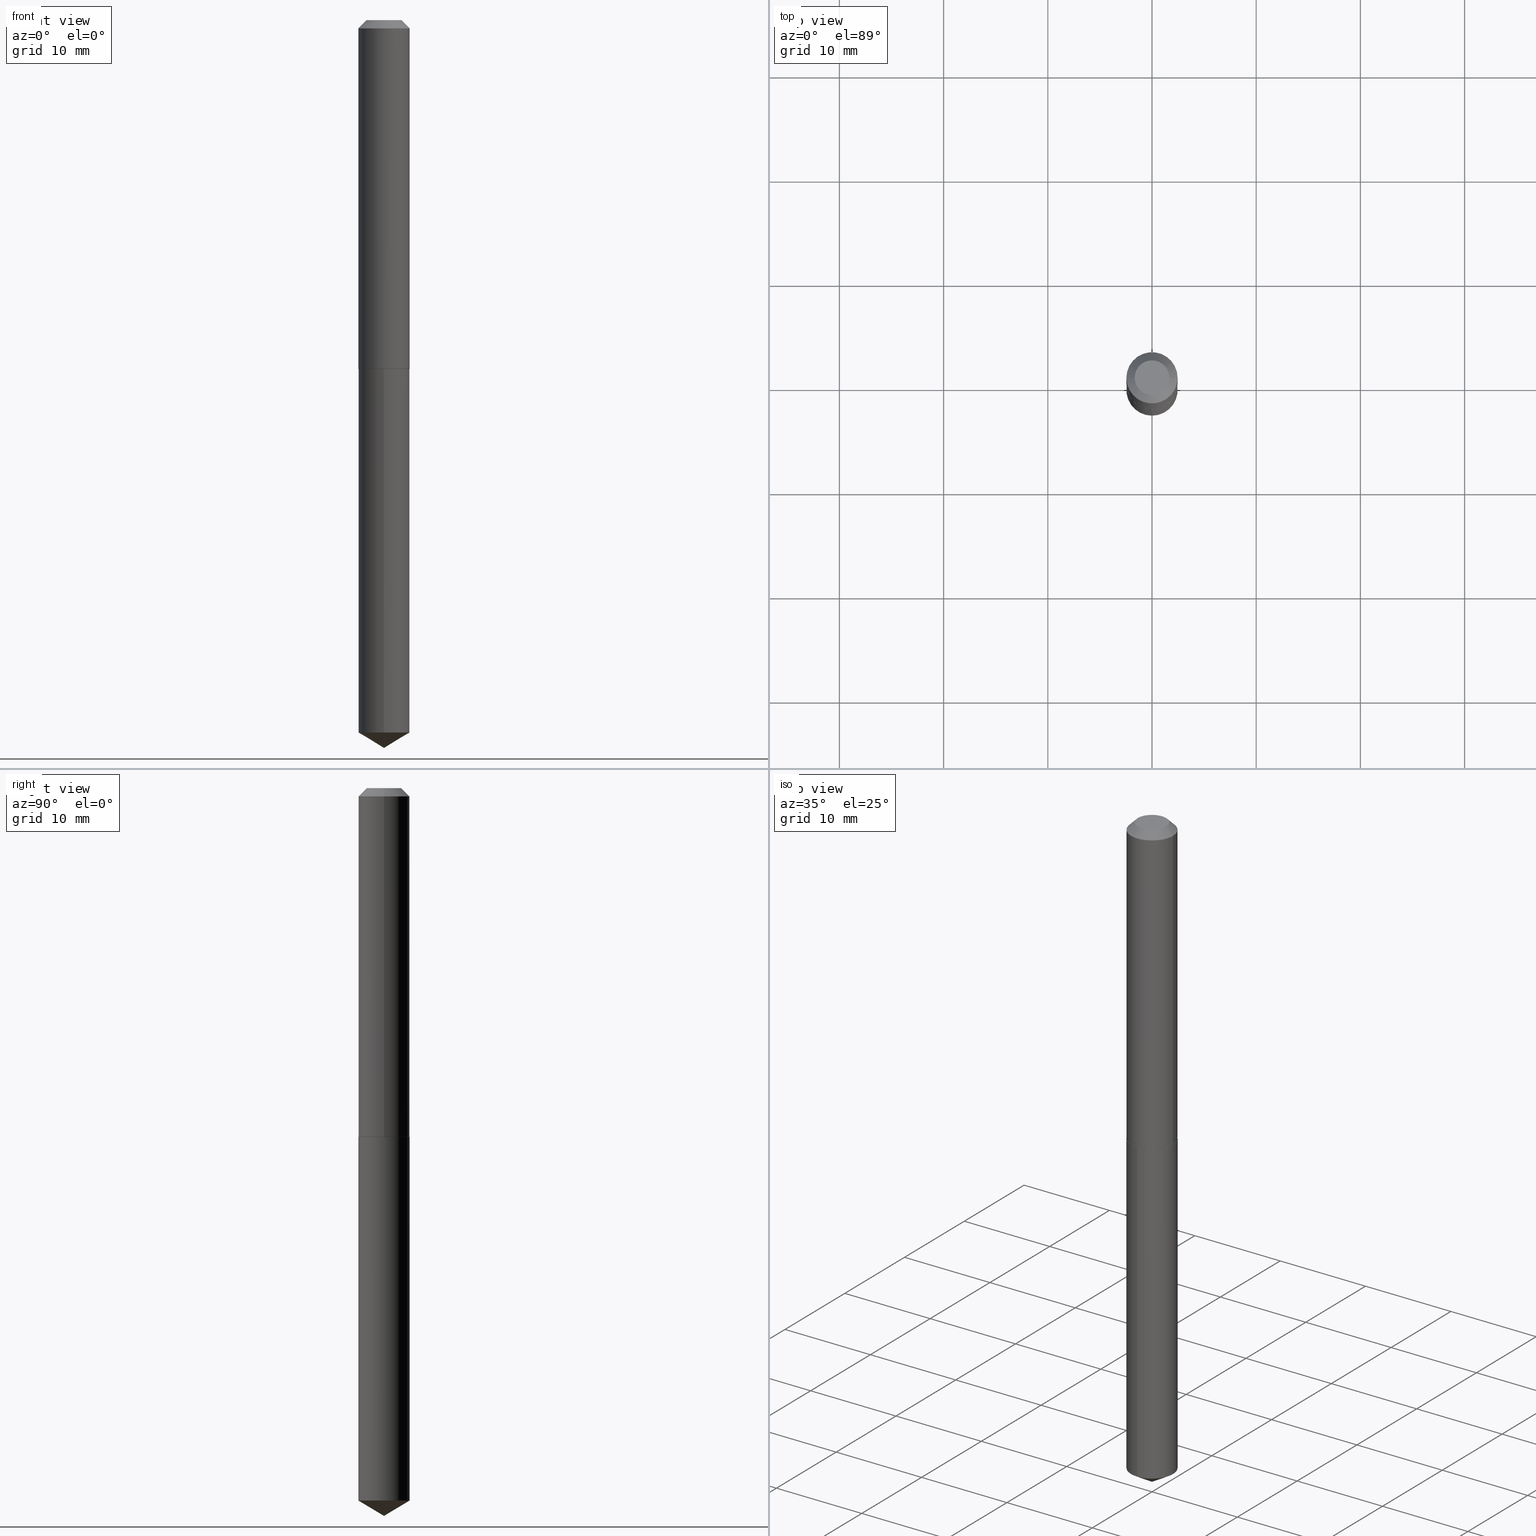
[diagram: canonical four-view strip — front | top / right | iso, engineering-drawing reading convention]
A machine part, canonical four-view strip (front | top / right | iso — engineering-drawing reading convention). The complete STEP part file that produces these views, byte-faithful:
ISO-10303-21;
HEADER;
FILE_DESCRIPTION (( 'STEP AP203' ),
    '1' );
FILE_NAME ('57158.STEP',
    '2024-04-22T23:07:11',
    ( '' ),
    ( '' ),
    'SwSTEP 2.0',
    'SolidWorks 2023',
    '' );
FILE_SCHEMA (( 'CONFIG_CONTROL_DESIGN' ));
ENDSEC;

DATA;
#1 = CIRCLE ( 'NONE', #223, 0.09675000000000000266 ) ;
#2 = FACE_OUTER_BOUND ( 'NONE', #183, .T. ) ;
#3 = DIRECTION ( 'NONE',  ( 2.445534353005250653E-29, -3.491387472066048584E-15, -1.000000000000000000 ) ) ;
#4 = ORIENTED_EDGE ( 'NONE', *, *, #359, .F. ) ;
#5 = DATE_AND_TIME ( #108, #284 ) ;
#6 = EDGE_CURVE ( 'NONE', #300, #65, #360, .T. ) ;
#7 = VECTOR ( 'NONE', #347, 39.37007874015748143 ) ;
#8 = MANIFOLD_SOLID_BREP ( 'Body-Move/Copy2[2]', #33 ) ;
#9 = DIRECTION ( 'NONE',  ( 1.000000000000000000, -6.982962677686261977E-15, 0.000000000000000000 ) ) ;
#10 = FACE_OUTER_BOUND ( 'NONE', #369, .T. ) ;
#11 = PERSON_AND_ORGANIZATION ( #367, #182 ) ;
#12 = ORIENTED_EDGE ( 'NONE', *, *, #364, .F. ) ;
#13 = CIRCLE ( 'NONE', #106, 0.09675000000000016920 ) ;
#14 = PLANE ( 'NONE',  #188 ) ;
#15 = CALENDAR_DATE ( 2024, 22, 4 ) ;
#16 = CARTESIAN_POINT ( 'NONE',  ( -0.06550000000000000266, 5.119384513078738681E-16, 1.530808498900305475E-19 ) ) ;
#17 = CARTESIAN_POINT ( 'NONE',  ( -0.09675000000000016920, -3.914322307747367897E-15, -1.318000000000000060 ) ) ;
#18 = EDGE_LOOP ( 'NONE', ( #270, #96, #51, #333 ) ) ;
#19 = AXIS2_PLACEMENT_3D ( 'NONE', #237, #22, #202 ) ;
#20 = DATE_TIME_ROLE ( 'classification_date' ) ;
#21 = DIRECTION ( 'NONE',  ( 6.090539988449784746E-15, 0.8571673007021146651, 0.5150380749100501587 ) ) ;
#22 = DIRECTION ( 'NONE',  ( -2.445534353005250934E-29, 3.491387472066048584E-15, 1.000000000000000000 ) ) ;
#23 = DIRECTION ( 'NONE',  ( -5.985567269335947590E-15, -0.8571673007021111124, 0.5150380749100561539 ) ) ;
#24 = EDGE_CURVE ( 'NONE', #294, #244, #59, .T. ) ;
#25 = CONICAL_SURFACE ( 'NONE', #295, 0.09675000000000000266, 0.7853981633974452814 ) ;
#26 = ORIENTED_EDGE ( 'NONE', *, *, #275, .F. ) ;
#27 = PRODUCT_RELATED_PRODUCT_CATEGORY ( 'detail', '', ( #85 ) ) ;
#28 = DIRECTION ( 'NONE',  ( -2.445468806185136597E-29, 3.491481338843145583E-15, 1.000000000000000000 ) ) ;
#29 = DIRECTION ( 'NONE',  ( 6.982962677686265922E-15, 1.000000000000000000, -3.491387472066048584E-15 ) ) ;
#30 = ORIENTED_EDGE ( 'NONE', *, *, #70, .T. ) ;
#31 = DIRECTION ( 'NONE',  ( -1.000000000000000000, 6.982962677686265922E-15, -4.876176775795935793E-29 ) ) ;
#32 = VERTEX_POINT ( 'NONE', #39 ) ;
#33 = CLOSED_SHELL ( 'NONE', ( #54, #69, #379, #247, #38, #304, #134, #374 ) ) ;
#34 = EDGE_LOOP ( 'NONE', ( #344, #335, #30, #274 ) ) ;
#35 = EDGE_CURVE ( 'NONE', #56, #305, #157, .T. ) ;
#36 = VECTOR ( 'NONE', #255, 39.37007874015748143 ) ;
#37 = CARTESIAN_POINT ( 'NONE',  ( 3.224350620955102598E-29, -4.603518145264687138E-15, -1.318499999999999783 ) ) ;
#38 = ADVANCED_FACE ( 'NONE', ( #74 ), #165, .T. ) ;
#39 = CARTESIAN_POINT ( 'NONE',  ( -0.09675000000000000266, -1.667990501369159630E-15, -0.03125000000000019429 ) ) ;
#40 = CARTESIAN_POINT ( 'NONE',  ( -0.09675000000000016920, -3.914322307747367897E-15, -1.318000000000000060 ) ) ;
#41 = CARTESIAN_POINT ( 'NONE',  ( 0.000000000000000000, 0.000000000000000000, 0.000000000000000000 ) ) ;
#42 = LENGTH_MEASURE_WITH_UNIT ( LENGTH_MEASURE( 0.02539999999999999897 ), #79 );
#43 = AXIS2_PLACEMENT_3D ( 'NONE', #285, #104, #84 ) ;
#44 = LOCAL_TIME ( 19, 7, 11.00000000000000000, #317 ) ;
#45 = CARTESIAN_POINT ( 'NONE',  ( 6.874500968479290948E-16, 0.09674999999999539524, -1.318500000000000227 ) ) ;
#46 = DATE_AND_TIME ( #358, #277 ) ;
#47 = CARTESIAN_POINT ( 'NONE',  ( 3.223127886552009797E-29, -4.601772404595266423E-15, -1.318000000000000060 ) ) ;
#48 = CARTESIAN_POINT ( 'NONE',  ( -6.756016390661139925E-16, -0.09675000000000461009, -1.318499999999999561 ) ) ;
#49 = ORIENTED_EDGE ( 'NONE', *, *, #88, .F. ) ;
#50 = APPROVAL_DATE_TIME ( #46, #266 ) ;
#51 = ORIENTED_EDGE ( 'NONE', *, *, #187, .F. ) ;
#52 = LOCAL_TIME ( 19, 7, 11.00000000000000000, #325 ) ;
#53 = CALENDAR_DATE ( 2024, 22, 4 ) ;
#54 = ADVANCED_FACE ( 'NONE', ( #209 ), #349, .T. ) ;
#55 = PERSON_AND_ORGANIZATION ( #367, #182 ) ;
#56 = VERTEX_POINT ( 'NONE', #185 ) ;
#57 = CARTESIAN_POINT ( 'NONE',  ( 3.224350620955102598E-29, -4.603518145264687138E-15, -1.318499999999999783 ) ) ;
#58 = ADVANCED_BREP_SHAPE_REPRESENTATION ( '57158', ( #276, #8, #302 ), #296 ) ;
#59 = CIRCLE ( 'NONE', #307, 0.06550000000000000266 ) ;
#60 = ORIENTED_EDGE ( 'NONE', *, *, #204, .T. ) ;
#61 = DIRECTION ( 'NONE',  ( -6.982962677686267499E-15, -1.000000000000000000, 3.468864327941585142E-15 ) ) ;
#62 = CARTESIAN_POINT ( 'NONE',  ( 3.224350620955101477E-29, -4.603518145264686349E-15, -1.318499999999999561 ) ) ;
#63 = ORIENTED_EDGE ( 'NONE', *, *, #359, .T. ) ;
#64 = DIRECTION ( 'NONE',  ( 2.445468806185136597E-29, -3.491481338843145583E-15, -1.000000000000000000 ) ) ;
#65 = VERTEX_POINT ( 'NONE', #83 ) ;
#66 = AXIS2_PLACEMENT_3D ( 'NONE', #390, #97, #332 ) ;
#67 = CIRCLE ( 'NONE', #231, 0.09675000000000016920 ) ;
#68 = CARTESIAN_POINT ( 'NONE',  ( 6.874500968479629173E-16, 0.09674999999999539524, -1.318500000000000227 ) ) ;
#69 = ADVANCED_FACE ( 'NONE', ( #257 ), #343, .T. ) ;
#70 = EDGE_CURVE ( 'NONE', #305, #179, #163, .T. ) ;
#71 = CARTESIAN_POINT ( 'NONE',  ( -8.955574699229469436E-28, 1.278547603761124781E-13, 36.62007874015748143 ) ) ;
#72 = CARTESIAN_POINT ( 'NONE',  ( 0.09675000000000000266, -7.728619731232445277E-16, -0.03125000000000019429 ) ) ;
#73 = DIRECTION ( 'NONE',  ( 1.000000000000000000, -6.982962677686266711E-15, 4.876196730720992146E-29 ) ) ;
#74 = FACE_OUTER_BOUND ( 'NONE', #240, .T. ) ;
#75 = DIMENSIONAL_EXPONENTS ( 1.000000000000000000, 0.000000000000000000, 0.000000000000000000, 0.000000000000000000, 0.000000000000000000, 0.000000000000000000, 0.000000000000000000 ) ;
#76 = LINE ( 'NONE', #45, #189 ) ;
#77 = SECURITY_CLASSIFICATION ( '', '', #323 ) ;
#78 = APPLICATION_CONTEXT ( 'configuration controlled 3d designs of mechanical parts and assemblies' ) ;
#79 =( LENGTH_UNIT ( ) NAMED_UNIT ( * ) SI_UNIT ( $, .METRE. ) );
#80 = DIRECTION ( 'NONE',  ( -6.982962677686267499E-15, -1.000000000000000000, 3.468864327941585142E-15 ) ) ;
#81 = AXIS2_PLACEMENT_3D ( 'NONE', #280, #127, #372 ) ;
#82 = EDGE_CURVE ( 'NONE', #305, #160, #13, .T. ) ;
#83 = CARTESIAN_POINT ( 'NONE',  ( 6.874500968479628186E-16, 0.09674999999999060740, -2.691866735109083919 ) ) ;
#84 = DIRECTION ( 'NONE',  ( -6.982962677686265922E-15, -1.000000000000000000, 2.823615497327403880E-15 ) ) ;
#85 = PRODUCT ( '57158', '57158', '', ( #249 ) ) ;
#86 = PERSON_AND_ORGANIZATION ( #367, #182 ) ;
#87 = CARTESIAN_POINT ( 'NONE',  ( 0.09675000000000008593, -6.756016390661468288E-16, 4.717701030582572027E-30 ) ) ;
#88 = EDGE_CURVE ( 'NONE', #244, #32, #331, .T. ) ;
#89 = ORIENTED_EDGE ( 'NONE', *, *, #205, .T. ) ;
#90 = AXIS2_PLACEMENT_3D ( 'NONE', #265, #326, #293 ) ;
#91 = CC_DESIGN_APPROVAL ( #266, ( #77 ) ) ;
#92 = DIRECTION ( 'NONE',  ( 1.000000000000000000, -6.982962677686262766E-15, 0.000000000000000000 ) ) ;
#93 = FACE_OUTER_BOUND ( 'NONE', #132, .T. ) ;
#94 = ORIENTED_EDGE ( 'NONE', *, *, #35, .F. ) ;
#95 = DATE_AND_TIME ( #355, #44 ) ;
#96 = ORIENTED_EDGE ( 'NONE', *, *, #246, .T. ) ;
#97 = DIRECTION ( 'NONE',  ( -2.445534353005250934E-29, 3.491387472066048584E-15, 1.000000000000000000 ) ) ;
#98 = ORIENTED_EDGE ( 'NONE', *, *, #303, .T. ) ;
#99 = PLANE ( 'NONE',  #243 ) ;
#100 = EDGE_CURVE ( 'NONE', #217, #65, #140, .T. ) ;
#101 = CIRCLE ( 'NONE', #149, 0.09625000000000023814 ) ;
#102 = CIRCLE ( 'NONE', #351, 0.06550000000000000266 ) ;
#103 = CC_DESIGN_PERSON_AND_ORGANIZATION_ASSIGNMENT ( #55, #353, ( #330 ) ) ;
#104 = DIRECTION ( 'NONE',  ( -2.445534353005250934E-29, 3.491387472066048584E-15, 1.000000000000000000 ) ) ;
#105 = CARTESIAN_POINT ( 'NONE',  ( 0.000000000000000000, 0.000000000000000000, 0.000000000000000000 ) ) ;
#106 = AXIS2_PLACEMENT_3D ( 'NONE', #47, #384, #92 ) ;
#107 = COORDINATED_UNIVERSAL_TIME_OFFSET ( 5, 0, .BEHIND. ) ;
#108 = CALENDAR_DATE ( 2024, 22, 4 ) ;
#109 = CARTESIAN_POINT ( 'NONE',  ( 0.09675000000000016920, -5.277374043661413548E-15, -1.318000000000000060 ) ) ;
#110 = DIRECTION ( 'NONE',  ( 1.000000000000000000, -6.982962677686265922E-15, 4.876176775795935793E-29 ) ) ;
#111 = DIRECTION ( 'NONE',  ( -2.445534353005250934E-29, 3.491387472066048584E-15, 1.000000000000000000 ) ) ;
#112 = DATE_AND_TIME ( #15, #356 ) ;
#113 = VECTOR ( 'NONE', #186, 39.37007874015748143 ) ;
#114 = ORIENTED_EDGE ( 'NONE', *, *, #389, .F. ) ;
#115 = ORIENTED_EDGE ( 'NONE', *, *, #162, .T. ) ;
#116 = PERSON_AND_ORGANIZATION_ROLE ( 'design_supplier' ) ;
#117 = DIRECTION ( 'NONE',  ( -0.7071067811865453523, 2.468850131082234184E-15, -0.7071067811865496822 ) ) ;
#118 = CC_DESIGN_APPROVAL ( #220, ( #136 ) ) ;
#119 = EDGE_LOOP ( 'NONE', ( #143, #368, #386, #215 ) ) ;
#120 = DIRECTION ( 'NONE',  ( -2.445468806185136597E-29, 3.491481338843145583E-15, 1.000000000000000000 ) ) ;
#121 = CONICAL_SURFACE ( 'NONE', #340, 65.52281426576860213, 1.029744258676655644 ) ;
#122 = ADVANCED_FACE ( 'NONE', ( #324 ), #141, .T. ) ;
#123 = ORIENTED_EDGE ( 'NONE', *, *, #192, .T. ) ;
#124 = ORIENTED_EDGE ( 'NONE', *, *, #6, .T. ) ;
#125 = VECTOR ( 'NONE', #213, 39.37007874015748143 ) ;
#126 = APPROVAL_PERSON_ORGANIZATION ( #234, #259, #263 ) ;
#127 = DIRECTION ( 'NONE',  ( -2.445468806185136597E-29, 3.491481338843145583E-15, 1.000000000000000000 ) ) ;
#128 = CARTESIAN_POINT ( 'NONE',  ( -0.09625000000000023814, -3.916971534921478309E-15, -1.318499999999999561 ) ) ;
#129 = DIRECTION ( 'NONE',  ( 1.000000000000000000, -6.982962677686262766E-15, 0.000000000000000000 ) ) ;
#130 = CYLINDRICAL_SURFACE ( 'NONE', #388, 0.09675000000000000266 ) ;
#131 = APPLICATION_PROTOCOL_DEFINITION ( 'international standard', 'config_control_design', 1994, #78 ) ;
#132 = EDGE_LOOP ( 'NONE', ( #114, #4, #361, #60 ) ) ;
#133 = PERSON_AND_ORGANIZATION_ROLE ( 'design_owner' ) ;
#134 = ADVANCED_FACE ( 'NONE', ( #93 ), #25, .T. ) ;
#135 = DIRECTION ( 'NONE',  ( -2.445468806185136597E-29, 3.491481338843145583E-15, 1.000000000000000000 ) ) ;
#136 = PRODUCT_DEFINITION ( 'UNKNOWN', '', #330, #211 ) ;
#137 = APPROVAL_STATUS ( 'not_yet_approved' ) ;
#138 = CARTESIAN_POINT ( 'NONE',  ( -8.955574699229469436E-28, 1.278547603761124781E-13, 36.62007874015748143 ) ) ;
#139 = DIRECTION ( 'NONE',  ( -2.445468806185136597E-29, 3.491481338843145583E-15, 1.000000000000000000 ) ) ;
#140 = CIRCLE ( 'NONE', #19, 0.09675000000000000266 ) ;
#141 = CYLINDRICAL_SURFACE ( 'NONE', #90, 0.09675000000000000266 ) ;
#142 = CARTESIAN_POINT ( 'NONE',  ( 7.642090019328598283E-31, -1.091087918388489651E-16, -0.03125000000000019429 ) ) ;
#143 = ORIENTED_EDGE ( 'NONE', *, *, #246, .F. ) ;
#144 = CIRCLE ( 'NONE', #43, 0.09675000000000000266 ) ;
#145 = ORIENTED_EDGE ( 'NONE', *, *, #303, .F. ) ;
#146 = DIRECTION ( 'NONE',  ( 1.000000000000000000, -6.982962677686265922E-15, 0.000000000000000000 ) ) ;
#147 = DIRECTION ( 'NONE',  ( -2.445468806185136597E-29, 3.491481338843145583E-15, 1.000000000000000000 ) ) ;
#148 = EDGE_CURVE ( 'NONE', #300, #217, #172, .T. ) ;
#149 = AXIS2_PLACEMENT_3D ( 'NONE', #313, #161, #9 ) ;
#150 = ORIENTED_EDGE ( 'NONE', *, *, #291, .T. ) ;
#151 = DIRECTION ( 'NONE',  ( -2.445468806185136597E-29, 3.491481338843145583E-15, 1.000000000000000000 ) ) ;
#152 = ORIENTED_EDGE ( 'NONE', *, *, #100, .F. ) ;
#153 = CARTESIAN_POINT ( 'NONE',  ( 0.09675000000000016920, -5.277374043661413548E-15, -1.318000000000000060 ) ) ;
#154 = CARTESIAN_POINT ( 'NONE',  ( 7.642090019328598283E-31, -1.091087918388489651E-16, -0.03125000000000019429 ) ) ;
#155 = FACE_OUTER_BOUND ( 'NONE', #281, .T. ) ;
#156 = VECTOR ( 'NONE', #23, 39.37007874015748143 ) ;
#157 = LINE ( 'NONE', #153, #113 ) ;
#158 = DIRECTION ( 'NONE',  ( -2.445534353005250934E-29, 3.491387472066048584E-15, 1.000000000000000000 ) ) ;
#159 = DIRECTION ( 'NONE',  ( 1.000000000000000000, 0.000000000000000000, 0.000000000000000000 ) ) ;
#160 = VERTEX_POINT ( 'NONE', #17 ) ;
#161 = DIRECTION ( 'NONE',  ( -2.445468806185136597E-29, 3.491481338843145583E-15, 1.000000000000000000 ) ) ;
#162 = EDGE_CURVE ( 'NONE', #179, #32, #177, .T. ) ;
#163 = LINE ( 'NONE', #87, #36 ) ;
#164 = ORIENTED_EDGE ( 'NONE', *, *, #148, .T. ) ;
#165 = CONICAL_SURFACE ( 'NONE', #81, 0.09675000000000016920, 0.7853981633977554777 ) ;
#166 = CC_DESIGN_SECURITY_CLASSIFICATION ( #77, ( #330 ) ) ;
#167 = CC_DESIGN_PERSON_AND_ORGANIZATION_ASSIGNMENT ( #290, #197, ( #77 ) ) ;
#168 = CARTESIAN_POINT ( 'NONE',  ( 6.582966150939029299E-29, -9.398473558776792284E-15, -2.691866735109083475 ) ) ;
#169 = APPROVAL_STATUS ( 'not_yet_approved' ) ;
#170 = CIRCLE ( 'NONE', #336, 0.09675000000000000266 ) ;
#171 = DATE_AND_TIME ( #53, #52 ) ;
#172 = LINE ( 'NONE', #329, #156 ) ;
#173 = EDGE_CURVE ( 'NONE', #217, #235, #232, .T. ) ;
#174 = CC_DESIGN_PERSON_AND_ORGANIZATION_ASSIGNMENT ( #387, #286, ( #136 ) ) ;
#175 = ORIENTED_EDGE ( 'NONE', *, *, #70, .F. ) ;
#176 = UNCERTAINTY_MEASURE_WITH_UNIT (LENGTH_MEASURE( 1.000000000000000082E-05 ), #221, 'distance_accuracy_value', 'NONE');
#177 = CIRCLE ( 'NONE', #370, 0.09675000000000000266 ) ;
#178 = ORIENTED_EDGE ( 'NONE', *, *, #187, .T. ) ;
#179 = VERTEX_POINT ( 'NONE', #239 ) ;
#180 = CARTESIAN_POINT ( 'NONE',  ( -1.871772216193336531E-48, 2.672394653685618784E-34, 7.654042494670987541E-20 ) ) ;
#181 = ORIENTED_EDGE ( 'NONE', *, *, #148, .F. ) ;
#182 = ORGANIZATION ( 'UNSPECIFIED', 'UNSPECIFIED', '' ) ;
#183 = EDGE_LOOP ( 'NONE', ( #123, #89, #233, #94 ) ) ;
#184 = DIRECTION ( 'NONE',  ( -2.445468806185136597E-29, 3.491481338843145583E-15, 1.000000000000000000 ) ) ;
#185 = CARTESIAN_POINT ( 'NONE',  ( 0.09625000000000023814, -5.275628302991991255E-15, -1.318499999999999561 ) ) ;
#186 = DIRECTION ( 'NONE',  ( 0.7071067811867647324, -2.468850131084532135E-15, 0.7071067811863303021 ) ) ;
#187 = EDGE_CURVE ( 'NONE', #235, #357, #383, .T. ) ;
#188 = AXIS2_PLACEMENT_3D ( 'NONE', #352, #227, #311 ) ;
#189 = VECTOR ( 'NONE', #111, 39.37007874015748143 ) ;
#190 = CARTESIAN_POINT ( 'NONE',  ( 0.06550000000000000266, -6.111122959886398953E-16, 1.530808498971552123E-19 ) ) ;
#191 = DIRECTION ( 'NONE',  ( -1.000000000000000000, 6.982962677686265922E-15, 0.000000000000000000 ) ) ;
#192 = EDGE_CURVE ( 'NONE', #56, #264, #301, .T. ) ;
#193 = CARTESIAN_POINT ( 'NONE',  ( 3.223127886552009797E-29, -4.601772404595266423E-15, -1.318000000000000060 ) ) ;
#194 = APPROVAL_DATE_TIME ( #5, #220 ) ;
#195 = CARTESIAN_POINT ( 'NONE',  ( -0.09675000000000008593, 6.874500968478975404E-16, -4.759069699821625440E-30 ) ) ;
#196 = AXIS2_PLACEMENT_3D ( 'NONE', #71, #350, #61 ) ;
#197 = PERSON_AND_ORGANIZATION_ROLE ( 'classification_officer' ) ;
#198 = COORDINATED_UNIVERSAL_TIME_OFFSET ( 5, 0, .BEHIND. ) ;
#199 = DIRECTION ( 'NONE',  ( -1.000000000000000000, 6.982962677686265922E-15, 0.000000000000000000 ) ) ;
#200 = ORIENTED_EDGE ( 'NONE', *, *, #24, .F. ) ;
#201 = CONICAL_SURFACE ( 'NONE', #242, 0.09675000000000016920, 0.7853981633977554777 ) ;
#202 = DIRECTION ( 'NONE',  ( -6.982962677686265922E-15, -1.000000000000000000, 5.647230994654807760E-15 ) ) ;
#203 = CARTESIAN_POINT ( 'NONE',  ( 7.642090019328598283E-31, -1.091087918388489651E-16, -0.03125000000000019429 ) ) ;
#204 = EDGE_CURVE ( 'NONE', #32, #179, #170, .T. ) ;
#205 = EDGE_CURVE ( 'NONE', #264, #160, #339, .T. ) ;
#206 = CARTESIAN_POINT ( 'NONE',  ( -0.09675000000000000266, 5.664928472272973338E-16, -0.03125000000000019429 ) ) ;
#207 = EDGE_LOOP ( 'NONE', ( #63, #252 ) ) ;
#208 = EDGE_LOOP ( 'NONE', ( #218, #145 ) ) ;
#209 = FACE_OUTER_BOUND ( 'NONE', #238, .T. ) ;
#210 = ORIENTED_EDGE ( 'NONE', *, *, #35, .T. ) ;
#211 = DESIGN_CONTEXT ( 'detailed design', #78, 'design' ) ;
#212 = AXIS2_PLACEMENT_3D ( 'NONE', #41, #318, #110 ) ;
#213 = DIRECTION ( 'NONE',  ( -2.445534353005250934E-29, 3.491387472066048584E-15, 1.000000000000000000 ) ) ;
#214 = CC_DESIGN_DATE_AND_TIME_ASSIGNMENT ( #112, #262, ( #136 ) ) ;
#215 = ORIENTED_EDGE ( 'NONE', *, *, #279, .F. ) ;
#216 = CARTESIAN_POINT ( 'NONE',  ( -3.743544432386673062E-48, 5.344789307371237567E-34, 1.530808498934197508E-19 ) ) ;
#217 = VERTEX_POINT ( 'NONE', #316 ) ;
#218 = ORIENTED_EDGE ( 'NONE', *, *, #192, .F. ) ;
#219 = AXIS2_PLACEMENT_3D ( 'NONE', #154, #64, #191 ) ;
#220 = APPROVAL ( #377, 'UNSPECIFIED' ) ;
#221 =( CONVERSION_BASED_UNIT ( 'INCH', #42 ) LENGTH_UNIT ( ) NAMED_UNIT ( #75 ) );
#222 = DIRECTION ( 'NONE',  ( -2.445468806185136877E-29, 3.491481338843145188E-15, 1.000000000000000000 ) ) ;
#223 = AXIS2_PLACEMENT_3D ( 'NONE', #168, #258, #375 ) ;
#224 = FACE_OUTER_BOUND ( 'NONE', #271, .T. ) ;
#225 =( NAMED_UNIT ( * ) SI_UNIT ( $, .STERADIAN. ) SOLID_ANGLE_UNIT ( ) );
#226 = PRODUCT_DEFINITION_SHAPE ( 'NONE', 'NONE',  #136 ) ;
#227 = DIRECTION ( 'NONE',  ( -2.438088387897960049E-29, 3.491481338843145188E-15, 1.000000000000000000 ) ) ;
#228 = APPLICATION_PROTOCOL_DEFINITION ( 'international standard', 'config_control_design', 1994, #292 ) ;
#229 = CARTESIAN_POINT ( 'NONE',  ( -3.743544432386673062E-48, 5.344789307371237567E-34, 1.530808498934197508E-19 ) ) ;
#230 = FACE_OUTER_BOUND ( 'NONE', #34, .T. ) ;
#231 = AXIS2_PLACEMENT_3D ( 'NONE', #366, #184, #334 ) ;
#232 = LINE ( 'NONE', #269, #125 ) ;
#233 = ORIENTED_EDGE ( 'NONE', *, *, #82, .F. ) ;
#234 = PERSON_AND_ORGANIZATION ( #367, #182 ) ;
#235 = VERTEX_POINT ( 'NONE', #48 ) ;
#236 = APPROVAL_DATE_TIME ( #171, #259 ) ;
#237 = CARTESIAN_POINT ( 'NONE',  ( 6.582966150939029299E-29, -9.398473558776792284E-15, -2.691866735109083475 ) ) ;
#238 = EDGE_LOOP ( 'NONE', ( #200, #322, #115, #49 ) ) ;
#239 = CARTESIAN_POINT ( 'NONE',  ( 0.09675000000000000266, -7.847104309049952392E-16, -0.03125000000000019429 ) ) ;
#240 = EDGE_LOOP ( 'NONE', ( #365, #98, #210, #12 ) ) ;
#241 = DIRECTION ( 'NONE',  ( 1.000000000000000000, -6.982962677686266711E-15, 4.876196730720992146E-29 ) ) ;
#242 = AXIS2_PLACEMENT_3D ( 'NONE', #193, #312, #129 ) ;
#243 = AXIS2_PLACEMENT_3D ( 'NONE', #180, #299, #31 ) ;
#244 = VERTEX_POINT ( 'NONE', #16 ) ;
#245 = FACE_OUTER_BOUND ( 'NONE', #207, .T. ) ;
#246 = EDGE_CURVE ( 'NONE', #65, #357, #76, .T. ) ;
#247 = ADVANCED_FACE ( 'NONE', ( #282 ), #14, .F. ) ;
#248 = CLOSED_SHELL ( 'NONE', ( #122, #273, #328, #315, #346 ) ) ;
#249 = MECHANICAL_CONTEXT ( 'NONE', #292, 'mechanical' ) ;
#250 = CYLINDRICAL_SURFACE ( 'NONE', #378, 0.09675000000000008593 ) ;
#251 = PERSON_AND_ORGANIZATION ( #367, #182 ) ;
#252 = ORIENTED_EDGE ( 'NONE', *, *, #24, .T. ) ;
#253 = APPROVAL_ROLE ( '' ) ;
#254 = CARTESIAN_POINT ( 'NONE',  ( 6.725220986428289136E-29, -9.601315548181635775E-15, -2.750000000000000000 ) ) ;
#255 = DIRECTION ( 'NONE',  ( -2.445468806185136877E-29, 3.491481338843145188E-15, 1.000000000000000000 ) ) ;
#256 = DIRECTION ( 'NONE',  ( 1.000000000000000000, -6.982962677686265922E-15, 4.876176775795935793E-29 ) ) ;
#257 = FACE_OUTER_BOUND ( 'NONE', #327, .T. ) ;
#258 = DIRECTION ( 'NONE',  ( -2.445534353005250934E-29, 3.491387472066048584E-15, 1.000000000000000000 ) ) ;
#259 = APPROVAL ( #137, 'UNSPECIFIED' ) ;
#260 = DIRECTION ( 'NONE',  ( 1.000000000000000000, -6.982962677686265922E-15, 0.000000000000000000 ) ) ;
#261 = VECTOR ( 'NONE', #117, 39.37007874015748143 ) ;
#262 = DATE_TIME_ROLE ( 'creation_date' ) ;
#263 = APPROVAL_ROLE ( '' ) ;
#264 = VERTEX_POINT ( 'NONE', #128 ) ;
#265 = CARTESIAN_POINT ( 'NONE',  ( 3.224350620955102598E-29, -4.603518145264687138E-15, -1.318499999999999783 ) ) ;
#266 = APPROVAL ( #169, 'UNSPECIFIED' ) ;
#267 = AXIS2_PLACEMENT_3D ( 'NONE', #57, #3, #29 ) ;
#268 = ORIENTED_EDGE ( 'NONE', *, *, #279, .T. ) ;
#269 = CARTESIAN_POINT ( 'NONE',  ( -6.756016390661139925E-16, -0.09675000000000461009, -1.318499999999999561 ) ) ;
#270 = ORIENTED_EDGE ( 'NONE', *, *, #100, .T. ) ;
#271 = EDGE_LOOP ( 'NONE', ( #382, #164, #26 ) ) ;
#272 = VECTOR ( 'NONE', #21, 39.37007874015748143 ) ;
#273 = ADVANCED_FACE ( 'NONE', ( #10 ), #121, .T. ) ;
#274 = ORIENTED_EDGE ( 'NONE', *, *, #204, .F. ) ;
#275 = EDGE_CURVE ( 'NONE', #65, #217, #1, .T. ) ;
#276 = MANIFOLD_SOLID_BREP ( 'Body-Move/Copy2[1]', #248 ) ;
#277 = LOCAL_TIME ( 19, 7, 11.00000000000000000, #198 ) ;
#278 = CARTESIAN_POINT ( 'NONE',  ( 6.725219470764439157E-29, -9.601315548181632619E-15, -2.750000000000000000 ) ) ;
#279 = EDGE_CURVE ( 'NONE', #357, #235, #144, .T. ) ;
#280 = CARTESIAN_POINT ( 'NONE',  ( 3.223127886552009797E-29, -4.601772404595266423E-15, -1.318000000000000060 ) ) ;
#281 = EDGE_LOOP ( 'NONE', ( #178, #268 ) ) ;
#282 = FACE_OUTER_BOUND ( 'NONE', #208, .T. ) ;
#283 = DIRECTION ( 'NONE',  ( 0.7071067811865453523, -7.319954787623248157E-15, -0.7071067811865496822 ) ) ;
#284 = LOCAL_TIME ( 19, 7, 11.00000000000000000, #107 ) ;
#285 = CARTESIAN_POINT ( 'NONE',  ( 3.224350620955102598E-29, -4.603518145264687138E-15, -1.318499999999999783 ) ) ;
#286 = PERSON_AND_ORGANIZATION_ROLE ( 'creator' ) ;
#287 = CC_DESIGN_PERSON_AND_ORGANIZATION_ASSIGNMENT ( #11, #133, ( #85 ) ) ;
#288 = SHAPE_DEFINITION_REPRESENTATION ( #226, #58 ) ;
#289 = AXIS2_PLACEMENT_3D ( 'NONE', #62, #120, #297 ) ;
#290 = PERSON_AND_ORGANIZATION ( #367, #182 ) ;
#291 = EDGE_CURVE ( 'NONE', #160, #32, #345, .T. ) ;
#292 = APPLICATION_CONTEXT ( 'configuration controlled 3d designs of mechanical parts and assemblies' ) ;
#293 = DIRECTION ( 'NONE',  ( -6.982962677686265922E-15, -1.000000000000000000, 2.823615497327403880E-15 ) ) ;
#294 = VERTEX_POINT ( 'NONE', #190 ) ;
#295 = AXIS2_PLACEMENT_3D ( 'NONE', #203, #354, #199 ) ;
#296 =( GEOMETRIC_REPRESENTATION_CONTEXT ( 3 ) GLOBAL_UNCERTAINTY_ASSIGNED_CONTEXT ( ( #176 ) ) GLOBAL_UNIT_ASSIGNED_CONTEXT ( ( #221, #381, #225 ) ) REPRESENTATION_CONTEXT ( 'NONE', 'WORKASPACE' ) );
#297 = DIRECTION ( 'NONE',  ( 1.000000000000000000, -6.982962677686261977E-15, 0.000000000000000000 ) ) ;
#298 = CC_DESIGN_DATE_AND_TIME_ASSIGNMENT ( #95, #20, ( #77 ) ) ;
#299 = DIRECTION ( 'NONE',  ( 2.438088387897960049E-29, -3.491481338843145188E-15, -1.000000000000000000 ) ) ;
#300 = VERTEX_POINT ( 'NONE', #278 ) ;
#301 = CIRCLE ( 'NONE', #289, 0.09625000000000023814 ) ;
#302 = AXIS2_PLACEMENT_3D ( 'NONE', #309, #342, #159 ) ;
#303 = EDGE_CURVE ( 'NONE', #264, #56, #101, .T. ) ;
#304 = ADVANCED_FACE ( 'NONE', ( #230 ), #250, .T. ) ;
#305 = VERTEX_POINT ( 'NONE', #109 ) ;
#306 = LINE ( 'NONE', #72, #337 ) ;
#307 = AXIS2_PLACEMENT_3D ( 'NONE', #229, #151, #73 ) ;
#308 = FACE_OUTER_BOUND ( 'NONE', #119, .T. ) ;
#309 = CARTESIAN_POINT ( 'NONE',  ( 0.000000000000000000, 0.000000000000000000, 0.000000000000000000 ) ) ;
#310 = PLANE ( 'NONE',  #267 ) ;
#311 = DIRECTION ( 'NONE',  ( 1.000000000000000000, -6.982962677686265922E-15, 4.876176775795935793E-29 ) ) ;
#312 = DIRECTION ( 'NONE',  ( -2.445468806185136597E-29, 3.491481338843145583E-15, 1.000000000000000000 ) ) ;
#313 = CARTESIAN_POINT ( 'NONE',  ( 3.224350620955101477E-29, -4.603518145264686349E-15, -1.318499999999999561 ) ) ;
#314 = CONICAL_SURFACE ( 'NONE', #196, 65.52281426576860213, 1.029744258676655644 ) ;
#315 = ADVANCED_FACE ( 'NONE', ( #308 ), #130, .T. ) ;
#316 = CARTESIAN_POINT ( 'NONE',  ( -6.756016390660803673E-16, -0.09675000000000941180, -2.691866735109083031 ) ) ;
#317 = COORDINATED_UNIVERSAL_TIME_OFFSET ( 5, 0, .BEHIND. ) ;
#318 = DIRECTION ( 'NONE',  ( -2.445468806185136597E-29, 3.491481338843145583E-15, 1.000000000000000000 ) ) ;
#319 = COORDINATED_UNIVERSAL_TIME_OFFSET ( 5, 0, .BEHIND. ) ;
#320 = VECTOR ( 'NONE', #222, 39.37007874015748143 ) ;
#321 = CC_DESIGN_APPROVAL ( #259, ( #330 ) ) ;
#322 = ORIENTED_EDGE ( 'NONE', *, *, #389, .T. ) ;
#323 = SECURITY_CLASSIFICATION_LEVEL ( 'unclassified' ) ;
#324 = FACE_OUTER_BOUND ( 'NONE', #18, .T. ) ;
#325 = COORDINATED_UNIVERSAL_TIME_OFFSET ( 5, 0, .BEHIND. ) ;
#326 = DIRECTION ( 'NONE',  ( -2.445534353005250934E-29, 3.491387472066048584E-15, 1.000000000000000000 ) ) ;
#327 = EDGE_LOOP ( 'NONE', ( #373, #150, #380, #175 ) ) ;
#328 = ADVANCED_FACE ( 'NONE', ( #224 ), #314, .T. ) ;
#329 = CARTESIAN_POINT ( 'NONE',  ( 6.725046623799796963E-29, -9.601563074872838782E-15, -2.750000000000000000 ) ) ;
#330 = PRODUCT_DEFINITION_FORMATION_WITH_SPECIFIED_SOURCE ( 'ANY', '', #85, .NOT_KNOWN. ) ;
#331 = LINE ( 'NONE', #206, #261 ) ;
#332 = DIRECTION ( 'NONE',  ( -6.982962677686265922E-15, -1.000000000000000000, 2.823615497327403880E-15 ) ) ;
#333 = ORIENTED_EDGE ( 'NONE', *, *, #173, .F. ) ;
#334 = DIRECTION ( 'NONE',  ( 1.000000000000000000, -6.982962677686262766E-15, 0.000000000000000000 ) ) ;
#335 = ORIENTED_EDGE ( 'NONE', *, *, #364, .T. ) ;
#336 = AXIS2_PLACEMENT_3D ( 'NONE', #362, #28, #146 ) ;
#337 = VECTOR ( 'NONE', #283, 39.37007874015748143 ) ;
#338 = CC_DESIGN_PERSON_AND_ORGANIZATION_ASSIGNMENT ( #86, #116, ( #330 ) ) ;
#339 = LINE ( 'NONE', #40, #7 ) ;
#340 = AXIS2_PLACEMENT_3D ( 'NONE', #138, #341, #80 ) ;
#341 = DIRECTION ( 'NONE',  ( -2.445534353005250934E-29, 3.491387472066048584E-15, 1.000000000000000000 ) ) ;
#342 = DIRECTION ( 'NONE',  ( 0.000000000000000000, 0.000000000000000000, 1.000000000000000000 ) ) ;
#343 = CYLINDRICAL_SURFACE ( 'NONE', #212, 0.09675000000000008593 ) ;
#344 = ORIENTED_EDGE ( 'NONE', *, *, #291, .F. ) ;
#345 = LINE ( 'NONE', #195, #320 ) ;
#346 = ADVANCED_FACE ( 'NONE', ( #155 ), #310, .F. ) ;
#347 = DIRECTION ( 'NONE',  ( -0.7071067811867647324, 7.493145998871139866E-15, 0.7071067811863303021 ) ) ;
#348 = PERSON_AND_ORGANIZATION ( #367, #182 ) ;
#349 = CONICAL_SURFACE ( 'NONE', #219, 0.09675000000000000266, 0.7853981633974452814 ) ;
#350 = DIRECTION ( 'NONE',  ( -2.445534353005250934E-29, 3.491387472066048584E-15, 1.000000000000000000 ) ) ;
#351 = AXIS2_PLACEMENT_3D ( 'NONE', #216, #147, #241 ) ;
#352 = CARTESIAN_POINT ( 'NONE',  ( 5.837568659176047996E-29, -8.612411793983744938E-16, -1.318499999999999561 ) ) ;
#353 = PERSON_AND_ORGANIZATION_ROLE ( 'creator' ) ;
#354 = DIRECTION ( 'NONE',  ( 2.445468806185136597E-29, -3.491481338843145583E-15, -1.000000000000000000 ) ) ;
#355 = CALENDAR_DATE ( 2024, 22, 4 ) ;
#356 = LOCAL_TIME ( 19, 7, 11.00000000000000000, #319 ) ;
#357 = VERTEX_POINT ( 'NONE', #68 ) ;
#358 = CALENDAR_DATE ( 2024, 22, 4 ) ;
#359 = EDGE_CURVE ( 'NONE', #244, #294, #102, .T. ) ;
#360 = LINE ( 'NONE', #254, #272 ) ;
#361 = ORIENTED_EDGE ( 'NONE', *, *, #88, .T. ) ;
#362 = CARTESIAN_POINT ( 'NONE',  ( 7.642090019328598283E-31, -1.091087918388489651E-16, -0.03125000000000019429 ) ) ;
#363 = APPROVAL_PERSON_ORGANIZATION ( #251, #220, #253 ) ;
#364 = EDGE_CURVE ( 'NONE', #160, #305, #67, .T. ) ;
#365 = ORIENTED_EDGE ( 'NONE', *, *, #205, .F. ) ;
#366 = CARTESIAN_POINT ( 'NONE',  ( 3.223127886552009797E-29, -4.601772404595266423E-15, -1.318000000000000060 ) ) ;
#367 = PERSON ( 'UNSPECIFIED', 'UNSPECIFIED', 'UNSPECIFIED', ('UNSPECIFIED'), ('UNSPECIFIED'), ('UNSPECIFIED') ) ;
#368 = ORIENTED_EDGE ( 'NONE', *, *, #275, .T. ) ;
#369 = EDGE_LOOP ( 'NONE', ( #181, #124, #152 ) ) ;
#370 = AXIS2_PLACEMENT_3D ( 'NONE', #142, #139, #260 ) ;
#371 = APPROVAL_PERSON_ORGANIZATION ( #348, #266, #385 ) ;
#372 = DIRECTION ( 'NONE',  ( 1.000000000000000000, -6.982962677686262766E-15, 0.000000000000000000 ) ) ;
#373 = ORIENTED_EDGE ( 'NONE', *, *, #82, .T. ) ;
#374 = ADVANCED_FACE ( 'NONE', ( #245 ), #99, .F. ) ;
#375 = DIRECTION ( 'NONE',  ( -6.982962677686265922E-15, -1.000000000000000000, 5.647230994654807760E-15 ) ) ;
#376 = DIRECTION ( 'NONE',  ( -6.982962677686265922E-15, -1.000000000000000000, 2.823615497327403880E-15 ) ) ;
#377 = APPROVAL_STATUS ( 'not_yet_approved' ) ;
#378 = AXIS2_PLACEMENT_3D ( 'NONE', #105, #135, #256 ) ;
#379 = ADVANCED_FACE ( 'NONE', ( #2 ), #201, .T. ) ;
#380 = ORIENTED_EDGE ( 'NONE', *, *, #162, .F. ) ;
#381 =( NAMED_UNIT ( * ) PLANE_ANGLE_UNIT ( ) SI_UNIT ( $, .RADIAN. ) );
#382 = ORIENTED_EDGE ( 'NONE', *, *, #6, .F. ) ;
#383 = CIRCLE ( 'NONE', #66, 0.09675000000000000266 ) ;
#384 = DIRECTION ( 'NONE',  ( -2.445468806185136597E-29, 3.491481338843145583E-15, 1.000000000000000000 ) ) ;
#385 = APPROVAL_ROLE ( '' ) ;
#386 = ORIENTED_EDGE ( 'NONE', *, *, #173, .T. ) ;
#387 = PERSON_AND_ORGANIZATION ( #367, #182 ) ;
#388 = AXIS2_PLACEMENT_3D ( 'NONE', #37, #158, #376 ) ;
#389 = EDGE_CURVE ( 'NONE', #294, #179, #306, .T. ) ;
#390 = CARTESIAN_POINT ( 'NONE',  ( 3.224350620955102598E-29, -4.603518145264687138E-15, -1.318499999999999783 ) ) ;
ENDSEC;
END-ISO-10303-21;
